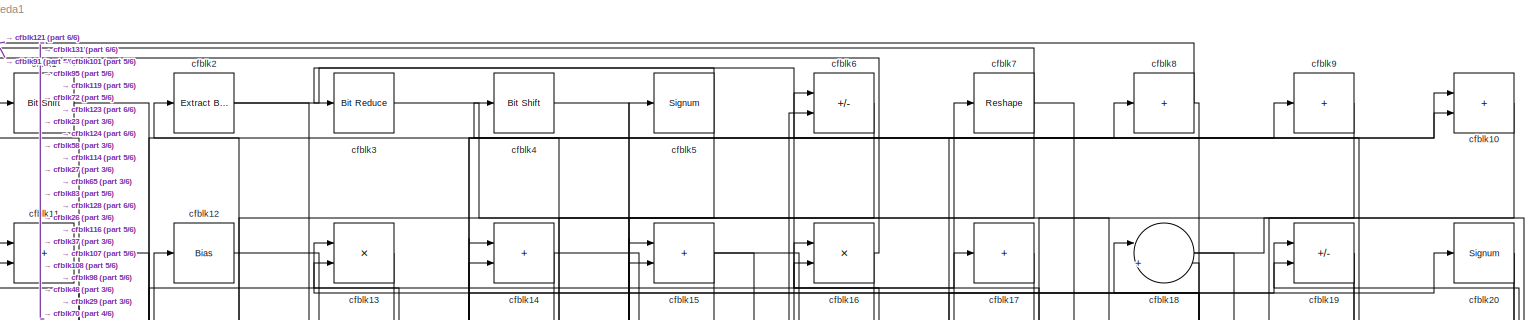
[diagram: root canvas - part 1/6, full width, top band]
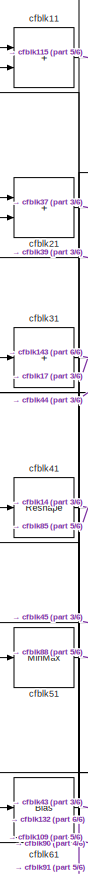
[diagram: root canvas - part 2/6, top left region]
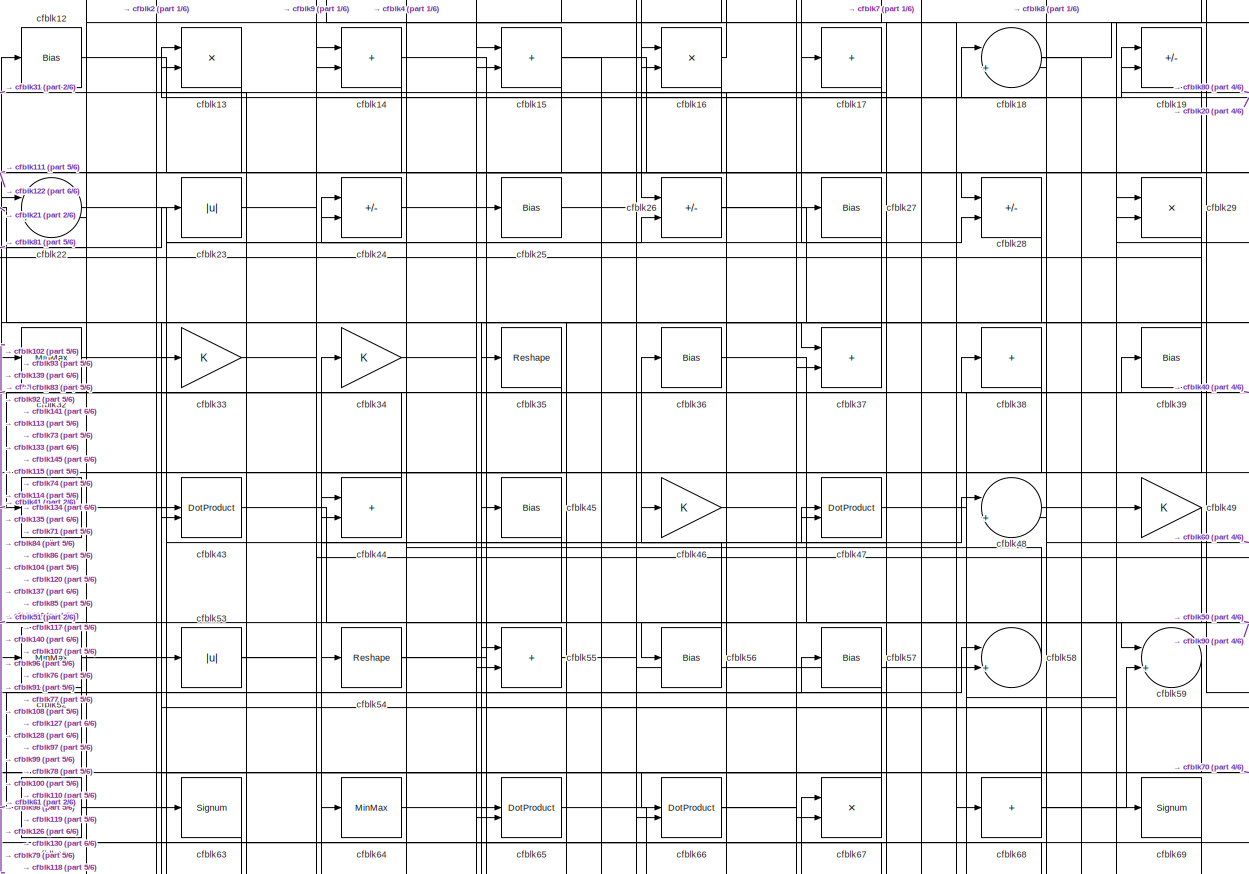
[diagram: root canvas - part 3/6, full width, top band]
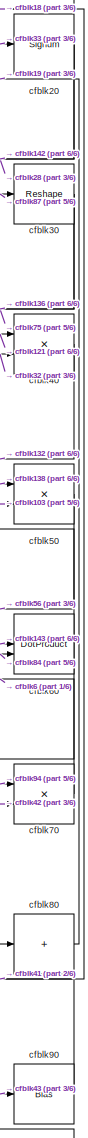
[diagram: root canvas - part 4/6, middle right region]
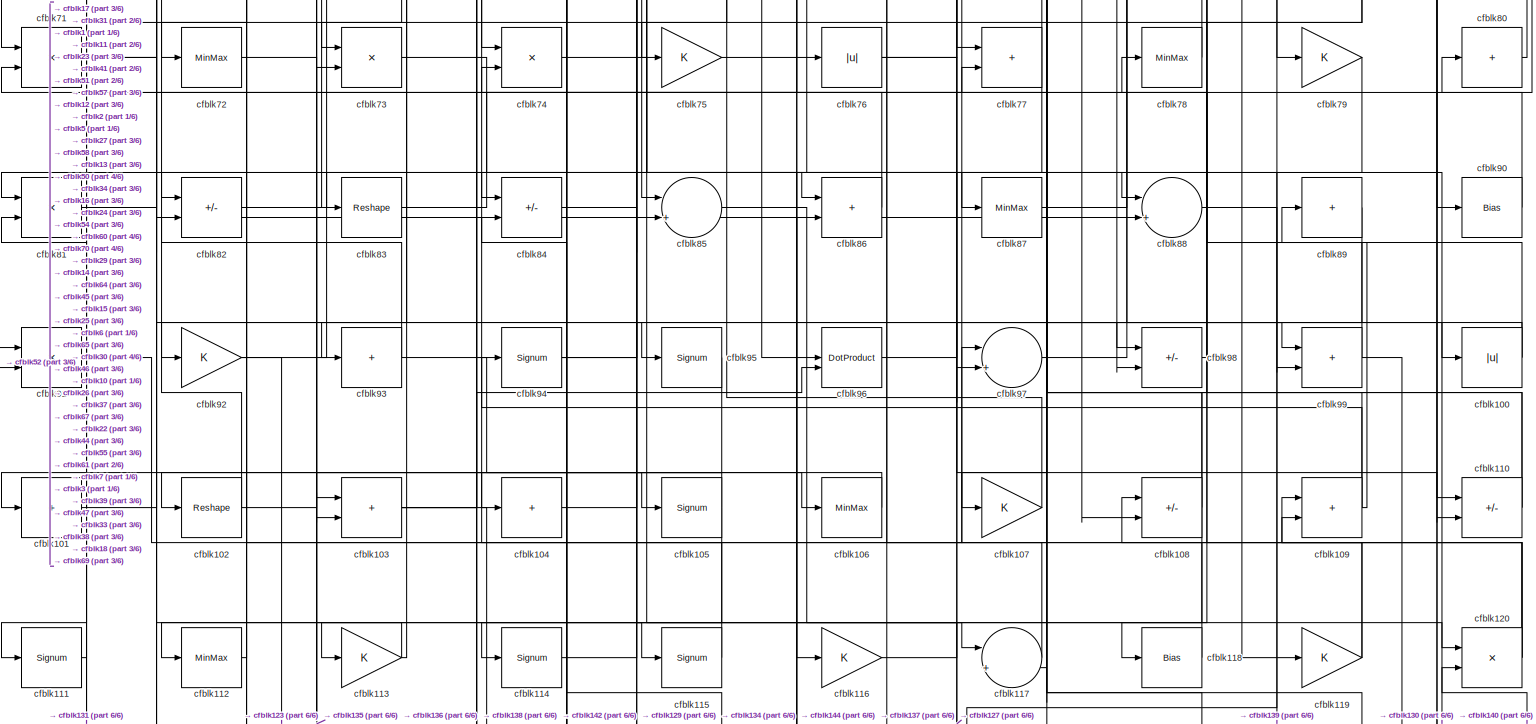
[diagram: root canvas - part 5/6, full width, middle band]
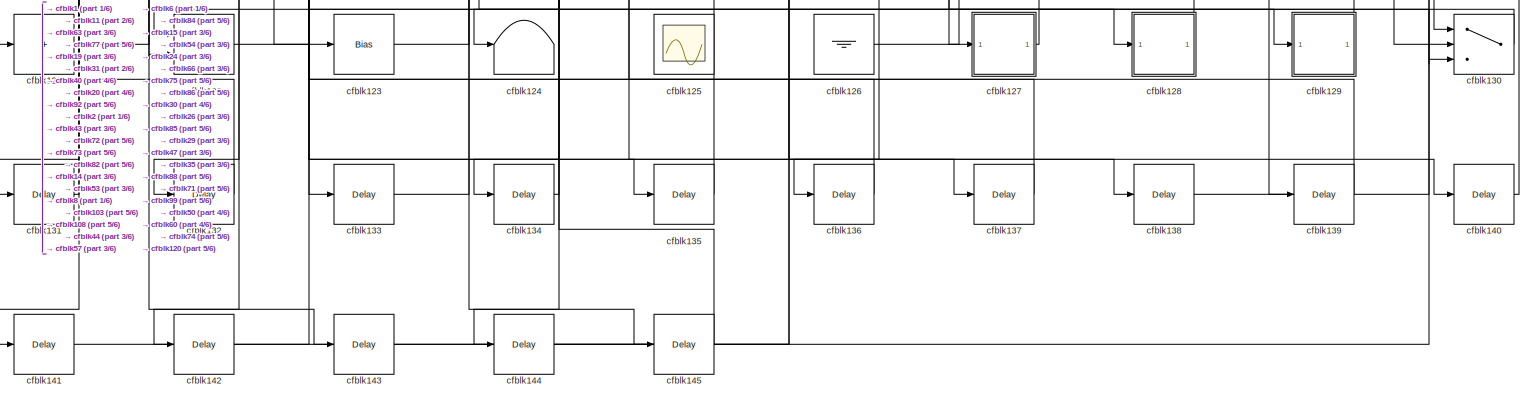
[diagram: root canvas - part 6/6, full width, bottom band]
MODEL slx_d45731efeda1
KIND model
CONFIG AbsTol = auto
CONFIG EnableMultiTasking = off
CONFIG FixedStep = auto
CONFIG MaxStep = auto
CONFIG MinStep = auto
CONFIG RelTol = 1e-3
CONFIG SampleTimeConstraint = Unconstrained
CONFIG SolverName = VariableStepAuto
CONFIG StartTime = 0.0
CONFIG StopTime = 10.0
BLOCK [Reference] cfblk1  REF=hdlsllib/Logic and Bit
Operations/Bit Shift
  SourceBlock = hdlsllib/Logic and Bit\nOperations/Bit Shift
  SourceType = Bit Shift
BLOCK [Sum] cfblk10
  IconShape = rectangular
BLOCK [Abs] cfblk100
  SaturateOnIntegerOverflow = off
BLOCK [Sum] cfblk101
  IconShape = rectangular
  Inputs = +
BLOCK [Reshape] cfblk102
BLOCK [Sum] cfblk103
  IconShape = rectangular
BLOCK [Sum] cfblk104
  IconShape = rectangular
  Inputs = +
BLOCK [Signum] cfblk105
BLOCK [MinMax] cfblk106
BLOCK [Gain] cfblk107
BLOCK [Sum] cfblk108
  IconShape = rectangular
  Inputs = +-
BLOCK [Sum] cfblk109
  IconShape = rectangular
BLOCK [Sum] cfblk11
  IconShape = rectangular
BLOCK [Sum] cfblk110
  IconShape = rectangular
  Inputs = +-
BLOCK [Signum] cfblk111
BLOCK [MinMax] cfblk112
BLOCK [Gain] cfblk113
BLOCK [Signum] cfblk114
BLOCK [Signum] cfblk115
BLOCK [Gain] cfblk116
BLOCK [Sum] cfblk117
  Inputs = |++
BLOCK [Bias] cfblk118
  Bias = 0.0
  SaturateOnIntegerOverflow = off
BLOCK [Gain] cfblk119
BLOCK [Bias] cfblk12
  Bias = 0.0
  SaturateOnIntegerOverflow = off
BLOCK [Product] cfblk120
  Inputs = */
  RndMeth = Zero
  SaturateOnIntegerOverflow = on
BLOCK [Sum] cfblk121
  IconShape = rectangular
  Inputs = +
BLOCK [Product] cfblk122
  Inputs = */
  RndMeth = Zero
  SaturateOnIntegerOverflow = on
BLOCK [Bias] cfblk123
  Bias = 0.0
  SaturateOnIntegerOverflow = off
BLOCK [Terminator] cfblk124
BLOCK [Scope] cfblk125
  Floating = on
  NumInputPorts = 1
  ScopeSpecificationString = Simulink.scopes.TimeScopeBlockCfg('CurrentConfiguration', extmgr.ConfigurationSet(extmgr.Configuration('Core','General UI',true,'FigureColor',[0.156862745098039 0.156862745098039 0.156862745098039]),extmgr.Configuration('Core','Source UI',true),extmgr.Configuration('Sources','WiredSimulink',true,'DataLoggingVariableName','ScopeData1','DataLoggingSaveFormat','StructureWithTime','DataLoggingLimitDat...<+2713ch>
BLOCK [Ground] cfblk126
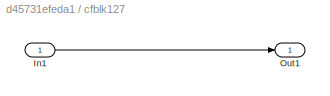
BLOCK [SubSystem] cfblk127
  LibrarySourceBlock = hdlsllib/Ports &\nSubsystems/Subsystem
BLOCK [Inport] cfblk127/In1
BLOCK [Outport] cfblk127/Out1
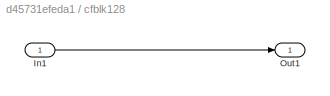
BLOCK [SubSystem] cfblk128
  LibrarySourceBlock = hdlsllib/Ports &\nSubsystems/Subsystem
BLOCK [Inport] cfblk128/In1
BLOCK [Outport] cfblk128/Out1
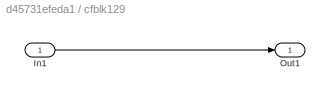
BLOCK [SubSystem] cfblk129
  LibrarySourceBlock = hdlsllib/Ports &\nSubsystems/Subsystem
BLOCK [Inport] cfblk129/In1
BLOCK [Outport] cfblk129/Out1
BLOCK [Product] cfblk13
  Inputs = */
  RndMeth = Zero
  SaturateOnIntegerOverflow = on
BLOCK [Switch] cfblk130
  InputSameDT = off
  SaturateOnIntegerOverflow = off
BLOCK [Delay] cfblk131
  InputPortMap = u0
  SampleTime = 1
BLOCK [Delay] cfblk132
  InputPortMap = u0
  SampleTime = 1
BLOCK [Delay] cfblk133
  InputPortMap = u0
  SampleTime = 1
BLOCK [Delay] cfblk134
  InputPortMap = u0
  SampleTime = 1
BLOCK [Delay] cfblk135
  InputPortMap = u0
  SampleTime = 1
BLOCK [Delay] cfblk136
  InputPortMap = u0
  SampleTime = 1
BLOCK [Delay] cfblk137
  InputPortMap = u0
  SampleTime = 1
BLOCK [Delay] cfblk138
  InputPortMap = u0
  SampleTime = 1
BLOCK [Delay] cfblk139
  InputPortMap = u0
  SampleTime = 1
BLOCK [Sum] cfblk14
  IconShape = rectangular
BLOCK [Delay] cfblk140
  InputPortMap = u0
  SampleTime = 1
BLOCK [Delay] cfblk141
  InputPortMap = u0
  SampleTime = 1
BLOCK [Delay] cfblk142
  InputPortMap = u0
  SampleTime = 1
BLOCK [Delay] cfblk143
  InputPortMap = u0
  SampleTime = 1
BLOCK [Delay] cfblk144
  InputPortMap = u0
  SampleTime = 1
BLOCK [Delay] cfblk145
  InputPortMap = u0
  SampleTime = 1
BLOCK [Sum] cfblk15
  IconShape = rectangular
BLOCK [Product] cfblk16
  Inputs = */
  RndMeth = Zero
  SaturateOnIntegerOverflow = on
BLOCK [Sum] cfblk17
  IconShape = rectangular
  Inputs = +
BLOCK [Sum] cfblk18
  Inputs = |++
BLOCK [Sum] cfblk19
  IconShape = rectangular
  Inputs = +-
BLOCK [Reference] cfblk2  REF=simulink/Logic and Bit
Operations/Extract Bits
  LibrarySourceBlock = hdlsllib/Logic and Bit\nOperations/Extract Bits
  SourceBlock = simulink/Logic and Bit\nOperations/Extract Bits
  SourceType = Extract Bits
BLOCK [Signum] cfblk20
BLOCK [Sum] cfblk21
  IconShape = rectangular
BLOCK [Sum] cfblk22
  Inputs = |++
BLOCK [Abs] cfblk23
  SaturateOnIntegerOverflow = off
BLOCK [Sum] cfblk24
  IconShape = rectangular
  Inputs = +-
BLOCK [Bias] cfblk25
  Bias = 0.0
  SaturateOnIntegerOverflow = off
BLOCK [Sum] cfblk26
  IconShape = rectangular
  Inputs = +-
BLOCK [Bias] cfblk27
  Bias = 0.0
  SaturateOnIntegerOverflow = off
BLOCK [Sum] cfblk28
  IconShape = rectangular
  Inputs = +-
BLOCK [Product] cfblk29
  Inputs = */
  RndMeth = Zero
  SaturateOnIntegerOverflow = on
BLOCK [Reference] cfblk3  REF=hdlsllib/Logic and Bit
Operations/Bit Reduce
  SourceBlock = hdlsllib/Logic and Bit\nOperations/Bit Reduce
  SourceType = Bit Reduce
BLOCK [Reshape] cfblk30
BLOCK [Sum] cfblk31
  IconShape = rectangular
  Inputs = +
BLOCK [MinMax] cfblk32
BLOCK [Gain] cfblk33
BLOCK [Gain] cfblk34
BLOCK [Reshape] cfblk35
BLOCK [Bias] cfblk36
  Bias = 0.0
  SaturateOnIntegerOverflow = off
BLOCK [Sum] cfblk37
  IconShape = rectangular
BLOCK [Sum] cfblk38
  IconShape = rectangular
  Inputs = +
BLOCK [Bias] cfblk39
  Bias = 0.0
  SaturateOnIntegerOverflow = off
BLOCK [Reference] cfblk4  REF=hdlsllib/Logic and Bit
Operations/Bit Shift
  SourceBlock = hdlsllib/Logic and Bit\nOperations/Bit Shift
  SourceType = Bit Shift
BLOCK [Product] cfblk40
  Inputs = */
  RndMeth = Zero
  SaturateOnIntegerOverflow = on
BLOCK [Reshape] cfblk41
BLOCK [Bias] cfblk42
  Bias = 0.0
  SaturateOnIntegerOverflow = off
BLOCK [DotProduct] cfblk43
  OutDataTypeStr = Inherit: Inherit via internal rule
BLOCK [Sum] cfblk44
  IconShape = rectangular
BLOCK [Bias] cfblk45
  Bias = 0.0
  SaturateOnIntegerOverflow = off
BLOCK [Gain] cfblk46
BLOCK [DotProduct] cfblk47
  OutDataTypeStr = Inherit: Inherit via internal rule
BLOCK [Sum] cfblk48
  Inputs = |++
BLOCK [Gain] cfblk49
BLOCK [Signum] cfblk5
BLOCK [Product] cfblk50
  Inputs = */
  RndMeth = Zero
  SaturateOnIntegerOverflow = on
BLOCK [MinMax] cfblk51
BLOCK [MinMax] cfblk52
BLOCK [Abs] cfblk53
  SaturateOnIntegerOverflow = off
BLOCK [Reshape] cfblk54
BLOCK [Sum] cfblk55
  IconShape = rectangular
BLOCK [Bias] cfblk56
  Bias = 0.0
  SaturateOnIntegerOverflow = off
BLOCK [Bias] cfblk57
  Bias = 0.0
  SaturateOnIntegerOverflow = off
BLOCK [Sum] cfblk58
  Inputs = |++
BLOCK [Sum] cfblk59
  Inputs = |++
BLOCK [Sum] cfblk6
  IconShape = rectangular
  Inputs = +-
BLOCK [DotProduct] cfblk60
  OutDataTypeStr = Inherit: Inherit via internal rule
BLOCK [Bias] cfblk61
  Bias = 0.0
  SaturateOnIntegerOverflow = off
BLOCK [Bias] cfblk62
  Bias = 0.0
  SaturateOnIntegerOverflow = off
BLOCK [Signum] cfblk63
BLOCK [MinMax] cfblk64
BLOCK [DotProduct] cfblk65
  OutDataTypeStr = Inherit: Inherit via internal rule
BLOCK [DotProduct] cfblk66
  OutDataTypeStr = Inherit: Inherit via internal rule
BLOCK [Product] cfblk67
  Inputs = */
  RndMeth = Zero
  SaturateOnIntegerOverflow = on
BLOCK [Sum] cfblk68
  IconShape = rectangular
  Inputs = +
BLOCK [Signum] cfblk69
BLOCK [Reshape] cfblk7
BLOCK [Product] cfblk70
  Inputs = */
  RndMeth = Zero
  SaturateOnIntegerOverflow = on
BLOCK [Product] cfblk71
  Inputs = */
  RndMeth = Zero
  SaturateOnIntegerOverflow = on
BLOCK [MinMax] cfblk72
BLOCK [Product] cfblk73
  Inputs = */
  RndMeth = Zero
  SaturateOnIntegerOverflow = on
BLOCK [Product] cfblk74
  Inputs = */
  RndMeth = Zero
  SaturateOnIntegerOverflow = on
BLOCK [Gain] cfblk75
BLOCK [Abs] cfblk76
  SaturateOnIntegerOverflow = off
BLOCK [Sum] cfblk77
  IconShape = rectangular
BLOCK [MinMax] cfblk78
BLOCK [Gain] cfblk79
BLOCK [Sum] cfblk8
  IconShape = rectangular
  Inputs = +
BLOCK [Sum] cfblk80
  IconShape = rectangular
  Inputs = +
BLOCK [Product] cfblk81
  Inputs = */
  RndMeth = Zero
  SaturateOnIntegerOverflow = on
BLOCK [Sum] cfblk82
  IconShape = rectangular
  Inputs = +-
BLOCK [Reshape] cfblk83
BLOCK [Sum] cfblk84
  IconShape = rectangular
  Inputs = +-
BLOCK [Sum] cfblk85
  Inputs = |++
BLOCK [Sum] cfblk86
  IconShape = rectangular
BLOCK [MinMax] cfblk87
BLOCK [Sum] cfblk88
  Inputs = |++
BLOCK [Sum] cfblk89
  IconShape = rectangular
  Inputs = +
BLOCK [Sum] cfblk9
  IconShape = rectangular
  Inputs = +
BLOCK [Bias] cfblk90
  Bias = 0.0
  SaturateOnIntegerOverflow = off
BLOCK [Product] cfblk91
  Inputs = */
  RndMeth = Zero
  SaturateOnIntegerOverflow = on
BLOCK [Gain] cfblk92
BLOCK [Sum] cfblk93
  IconShape = rectangular
  Inputs = +
BLOCK [Signum] cfblk94
BLOCK [Signum] cfblk95
BLOCK [DotProduct] cfblk96
  OutDataTypeStr = Inherit: Inherit via internal rule
BLOCK [Sum] cfblk97
  Inputs = |++
BLOCK [Sum] cfblk98
  IconShape = rectangular
  Inputs = +-
BLOCK [Sum] cfblk99
  IconShape = rectangular
NET cfblk100:1 -> cfblk13:1, cfblk92:1
LINE cfblk101:1 -> cfblk10:2
NET cfblk102:1 -> cfblk106:1, cfblk12:1
NET cfblk103:1 -> cfblk129:1, cfblk50:2, cfblk96:2
LINE cfblk104:1 -> cfblk25:1
NET cfblk105:1 -> cfblk101:1, cfblk113:1
LINE cfblk106:1 -> cfblk104:1
LINE cfblk107:1 -> cfblk45:1
NET cfblk108:1 -> cfblk144:1, cfblk16:2, cfblk55:1
NET cfblk109:1 -> cfblk61:1, cfblk89:1, cfblk94:1
LINE cfblk10:1 -> cfblk107:1
NET cfblk110:1 -> cfblk38:1, cfblk44:1
LINE cfblk111:1 -> cfblk81:2
LINE cfblk112:1 -> cfblk82:2
NET cfblk113:1 -> cfblk112:1, cfblk13:2
LINE cfblk114:1 -> cfblk5:1
LINE cfblk115:1 -> cfblk34:1
LINE cfblk116:1 -> cfblk10:1
LINE cfblk117:1 -> cfblk46:1
LINE cfblk118:1 -> cfblk97:1
NET cfblk119:1 -> cfblk2:1, cfblk78:1
LINE cfblk11:1 -> cfblk115:1
NET cfblk120:1 -> cfblk108:1, cfblk109:1, cfblk109:2
LINE cfblk121:1 -> cfblk40:1
LINE cfblk122:1 -> cfblk133:1
LINE cfblk123:1 -> cfblk8:1
LINE cfblk126:1 -> cfblk29:1
LINE cfblk127/In1:1 -> cfblk127/Out1:1
LINE cfblk127:1 -> cfblk47:1
LINE cfblk128/In1:1 -> cfblk128/Out1:1
LINE cfblk128:1 -> cfblk35:1
LINE cfblk129/In1:1 -> cfblk129/Out1:1
LINE cfblk129:1 -> cfblk71:2
LINE cfblk12:1 -> cfblk110:1
LINE cfblk130:1 -> cfblk122:1
LINE cfblk131:1 -> cfblk1:1
LINE cfblk132:1 -> cfblk11:2
LINE cfblk133:1 -> cfblk14:2
LINE cfblk134:1 -> cfblk84:2
LINE cfblk135:1 -> cfblk24:2
LINE cfblk136:1 -> cfblk103:1
LINE cfblk137:1 -> cfblk15:1
LINE cfblk138:1 -> cfblk50:1
LINE cfblk139:1 -> cfblk43:1
LINE cfblk13:1 -> cfblk52:1
LINE cfblk140:1 -> cfblk120:2
LINE cfblk141:1 -> cfblk66:2
LINE cfblk142:1 -> cfblk73:2
LINE cfblk143:1 -> cfblk60:1
LINE cfblk144:1 -> cfblk86:2
LINE cfblk145:1 -> cfblk44:2
NET cfblk14:1 -> cfblk117:1, cfblk73:1
NET cfblk15:1 -> cfblk68:1, cfblk84:1, cfblk96:1
NET cfblk16:1 -> cfblk114:1, cfblk71:1
LINE cfblk17:1 -> cfblk111:1
NET cfblk18:1 -> cfblk119:1, cfblk80:1
NET cfblk19:1 -> cfblk122:2, cfblk55:2
LINE cfblk1:1 -> cfblk95:1
NET cfblk20:1 -> cfblk142:1, cfblk28:1
LINE cfblk21:1 -> cfblk37:1
LINE cfblk22:1 -> cfblk28:2
LINE cfblk23:1 -> cfblk9:1
LINE cfblk24:1 -> cfblk15:2
LINE cfblk25:1 -> cfblk76:1
NET cfblk26:1 -> cfblk130:3, cfblk79:1
LINE cfblk27:1 -> cfblk83:1
LINE cfblk28:1 -> cfblk32:1
LINE cfblk29:1 -> cfblk85:1
NET cfblk2:1 -> cfblk128:1, cfblk26:1
NET cfblk30:1 -> cfblk136:1, cfblk75:1
NET cfblk31:1 -> cfblk143:1, cfblk17:1
LINE cfblk32:1 -> cfblk40:2
LINE cfblk33:1 -> cfblk20:1
LINE cfblk34:1 -> cfblk120:1
NET cfblk35:1 -> cfblk54:1, cfblk63:1
LINE cfblk36:1 -> cfblk59:1
LINE cfblk37:1 -> cfblk7:1
LINE cfblk38:1 -> cfblk42:1
NET cfblk39:1 -> cfblk21:2, cfblk74:1
LINE cfblk3:1 -> cfblk98:1
LINE cfblk40:1 -> cfblk132:1
NET cfblk41:1 -> cfblk14:1, cfblk85:2
LINE cfblk42:1 -> cfblk70:2
LINE cfblk43:1 -> cfblk90:1
NET cfblk44:1 -> cfblk11:1, cfblk21:1
LINE cfblk45:1 -> cfblk51:1
LINE cfblk46:1 -> cfblk77:1
LINE cfblk47:1 -> cfblk99:1
LINE cfblk48:1 -> cfblk49:1
LINE cfblk49:1 -> cfblk64:1
LINE cfblk4:1 -> cfblk27:1
LINE cfblk50:1 -> cfblk56:1
LINE cfblk51:1 -> cfblk88:1
NET cfblk52:1 -> cfblk47:2, cfblk62:1, cfblk65:1, cfblk91:2
NET cfblk53:1 -> cfblk145:1, cfblk67:2
NET cfblk54:1 -> cfblk116:1, cfblk140:1
LINE cfblk55:1 -> cfblk58:2
LINE cfblk56:1 -> cfblk36:1
NET cfblk57:1 -> cfblk134:1, cfblk81:1
LINE cfblk58:1 -> cfblk4:1
LINE cfblk59:1 -> cfblk66:1
NET cfblk5:1 -> cfblk3:1, cfblk72:1
NET cfblk60:1 -> cfblk103:2, cfblk18:2
LINE cfblk61:1 -> cfblk43:2
LINE cfblk62:1 -> cfblk26:2
LINE cfblk63:1 -> cfblk141:1
LINE cfblk64:1 -> cfblk97:2
LINE cfblk65:1 -> cfblk99:2
NET cfblk66:1 -> cfblk19:2, cfblk48:1
LINE cfblk67:1 -> cfblk16:1
NET cfblk68:1 -> cfblk53:1, cfblk59:2, cfblk69:1
NET cfblk69:1 -> cfblk118:1, cfblk93:1
LINE cfblk6:1 -> cfblk124:1
LINE cfblk70:1 -> cfblk6:1
NET cfblk71:1 -> cfblk57:1, cfblk77:2
LINE cfblk72:1 -> cfblk135:1
LINE cfblk73:1 -> cfblk86:1
LINE cfblk74:1 -> cfblk130:1
LINE cfblk75:1 -> cfblk137:1
NET cfblk76:1 -> cfblk110:2, cfblk37:2
NET cfblk77:1 -> cfblk131:1, cfblk22:1
LINE cfblk78:1 -> cfblk33:1
LINE cfblk79:1 -> cfblk82:1
NET cfblk7:1 -> cfblk108:2, cfblk65:2, cfblk91:1
LINE cfblk80:1 -> cfblk19:1
LINE cfblk81:1 -> cfblk23:1
NET cfblk82:1 -> cfblk138:1, cfblk87:1
LINE cfblk83:1 -> cfblk6:2
NET cfblk84:1 -> cfblk60:2, cfblk88:2
LINE cfblk85:1 -> cfblk127:1
LINE cfblk86:1 -> cfblk24:1
LINE cfblk87:1 -> cfblk30:1
LINE cfblk88:1 -> cfblk139:1
LINE cfblk89:1 -> cfblk117:2
NET cfblk8:1 -> cfblk121:1, cfblk48:2
LINE cfblk90:1 -> cfblk41:1
NET cfblk91:1 -> cfblk31:1, cfblk67:1
NET cfblk92:1 -> cfblk123:1, cfblk58:1
NET cfblk93:1 -> cfblk105:1, cfblk22:2
NET cfblk94:1 -> cfblk70:1, cfblk98:2
LINE cfblk95:1 -> cfblk102:1
LINE cfblk96:1 -> cfblk100:1
LINE cfblk97:1 -> cfblk39:1
LINE cfblk98:1 -> cfblk18:1
NET cfblk99:1 -> cfblk130:2, cfblk74:2
LINE cfblk9:1 -> cfblk29:2
note: NET lines group one-source signal fan-out (src -> all destinations, sorted); 1:1 wires keep LINE
